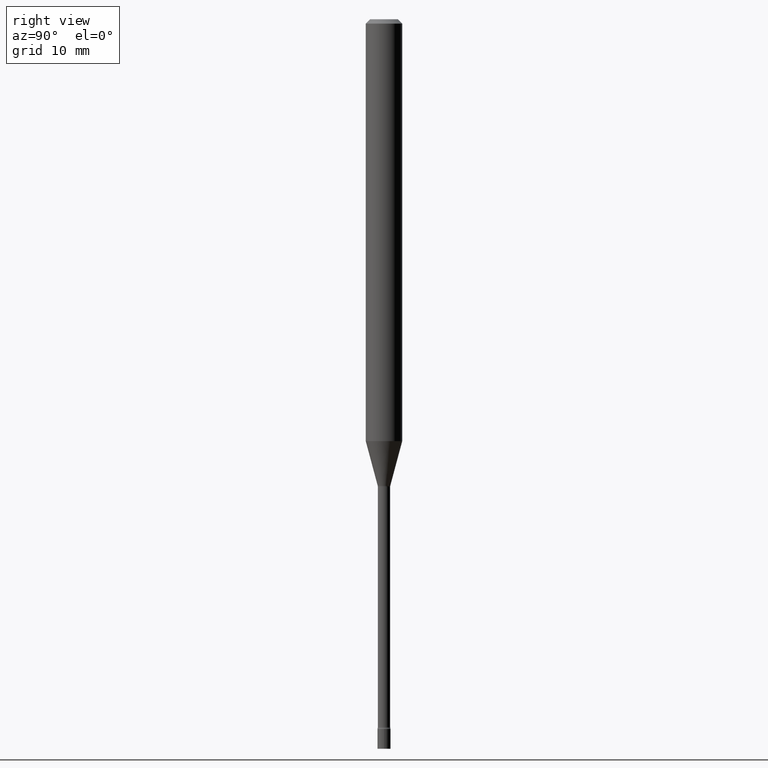
[diagram: clean part render]
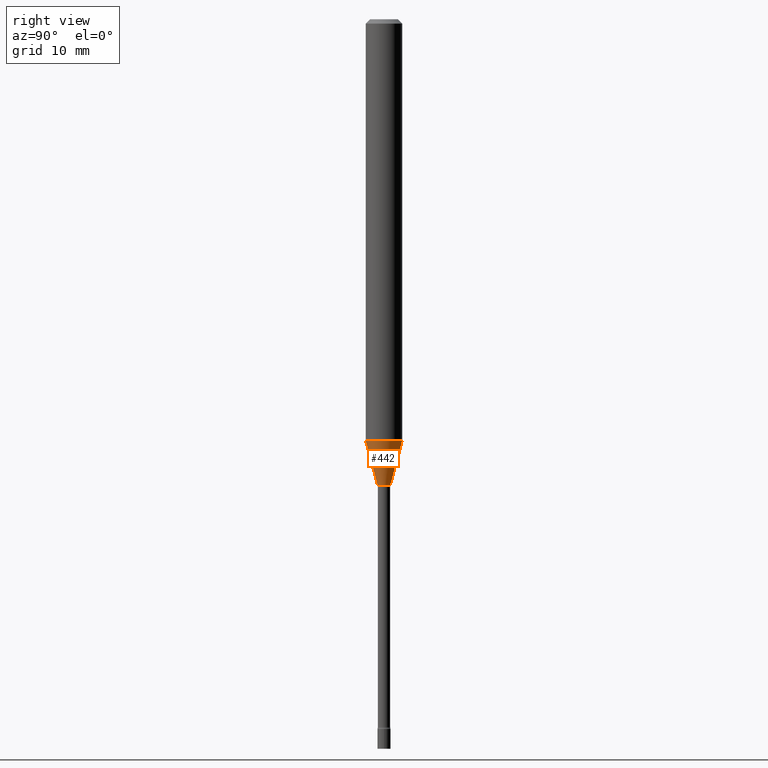
[diagram: same view with one face highlighted and labeled with its STEP entity id]
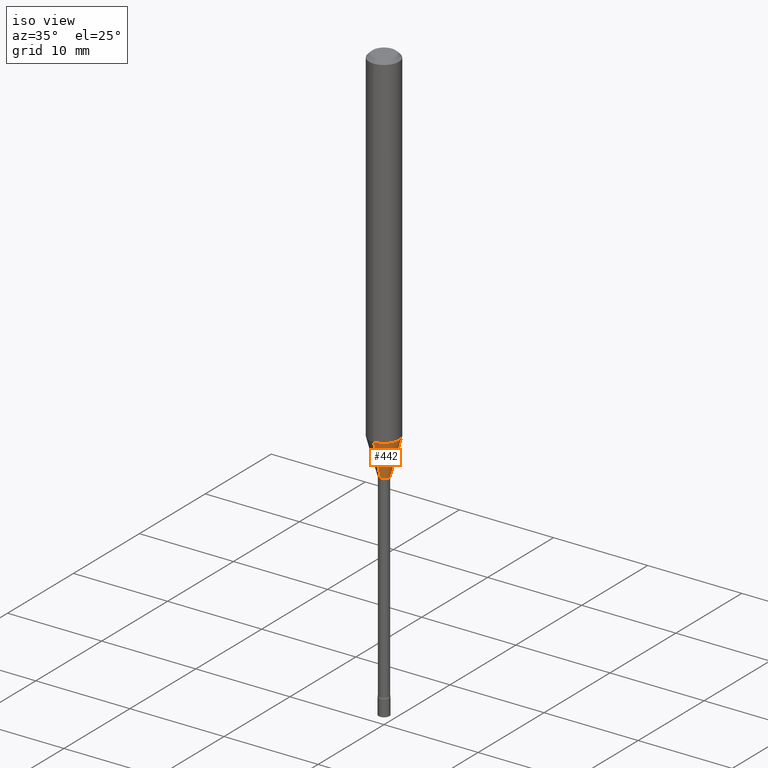
[diagram: same view with one face highlighted and labeled with its STEP entity id]
A machine part, right view. The second image highlights one B-rep face of the part: STEP entity #442.
A second angle (iso view) of the same face is appended — the face is thin or edge-on in the first view.
In plain terms, the highlighted conical surface has half-angle 15 deg.
Its self-contained STEP definition (entity closure, byte-faithful):
#10 = VERTEX_POINT ( 'NONE', #389 ) ;
#29 = DIRECTION ( 'NONE',  ( -6.982962677686265922E-15, -1.000000000000000000, 4.370956789862821150E-15 ) ) ;
#34 = CARTESIAN_POINT ( 'NONE',  ( 1.539114621043998178E-16, 0.02166111260565839816, -1.598092501787273134 ) ) ;
#55 = DIRECTION ( 'NONE',  ( -2.445430100594402543E-29, 3.491536767452062227E-15, 1.000000000000000000 ) ) ;
#61 = VERTEX_POINT ( 'NONE', #153 ) ;
#76 = CIRCLE ( 'NONE', #81, 0.02166111260566397703 ) ;
#77 = EDGE_CURVE ( 'NONE', #213, #10, #397, .T. ) ;
#81 = AXIS2_PLACEMENT_3D ( 'NONE', #467, #233, #509 ) ;
#99 = AXIS2_PLACEMENT_3D ( 'NONE', #507, #55, #107 ) ;
#103 = LINE ( 'NONE', #266, #430 ) ;
#107 = DIRECTION ( 'NONE',  ( -6.982962677686266711E-15, -1.000000000000000000, 0.000000000000000000 ) ) ;
#115 = DIRECTION ( 'NONE',  ( 1.839019923739599526E-15, 0.2588190451025248473, 0.9659258262890673130 ) ) ;
#118 = CARTESIAN_POINT ( 'NONE',  ( 3.535308652014583271E-29, -5.047643823391220949E-15, -1.445679699107027538 ) ) ;
#146 = CARTESIAN_POINT ( 'NONE',  ( -1.512587408824719933E-16, -0.02166111260566955590, -1.598092501787273134 ) ) ;
#153 = CARTESIAN_POINT ( 'NONE',  ( -4.364351673553564172E-16, -0.06250000000000506539, -1.445679699107027094 ) ) ;
#159 = AXIS2_PLACEMENT_3D ( 'NONE', #118, #445, #29 ) ;
#189 = CONICAL_SURFACE ( 'NONE', #99, 0.02166111260566397703, 0.2617993877991501295 ) ;
#192 = ORIENTED_EDGE ( 'NONE', *, *, #512, .T. ) ;
#203 = ORIENTED_EDGE ( 'NONE', *, *, #459, .F. ) ;
#213 = VERTEX_POINT ( 'NONE', #282 ) ;
#232 = ORIENTED_EDGE ( 'NONE', *, *, #77, .T. ) ;
#233 = DIRECTION ( 'NONE',  ( -2.445430100594402543E-29, 3.491536767452062227E-15, 1.000000000000000000 ) ) ;
#236 = EDGE_CURVE ( 'NONE', #61, #10, #386, .T. ) ;
#252 = VECTOR ( 'NONE', #115, 39.37007874015747433 ) ;
#266 = CARTESIAN_POINT ( 'NONE',  ( -1.512587408824719933E-16, -0.02166111260566955590, -1.598092501787273134 ) ) ;
#282 = CARTESIAN_POINT ( 'NONE',  ( 2.990003359772489910E-16, 0.02166111260565839816, -1.598092501787273134 ) ) ;
#310 = FACE_OUTER_BOUND ( 'NONE', #407, .T. ) ;
#346 = DIRECTION ( 'NONE',  ( -1.807323732225328562E-15, -0.2588190451025179639, 0.9659258262890689783 ) ) ;
#349 = ORIENTED_EDGE ( 'NONE', *, *, #236, .F. ) ;
#386 = CIRCLE ( 'NONE', #159, 0.06250000000000000000 ) ;
#389 = CARTESIAN_POINT ( 'NONE',  ( 4.440892098500978191E-16, 0.06249999999999494849, -1.445679699107027760 ) ) ;
#397 = LINE ( 'NONE', #34, #252 ) ;
#407 = EDGE_LOOP ( 'NONE', ( #192, #232, #349, #203 ) ) ;
#430 = VECTOR ( 'NONE', #346, 39.37007874015749564 ) ;
#442 = ADVANCED_FACE ( 'NONE', ( #310 ), #189, .T. ) ;
#445 = DIRECTION ( 'NONE',  ( -2.445430100594402543E-29, 3.491536767452062227E-15, 1.000000000000000000 ) ) ;
#459 = EDGE_CURVE ( 'NONE', #475, #61, #103, .T. ) ;
#467 = CARTESIAN_POINT ( 'NONE',  ( 3.908023507404811827E-29, -5.579798727779714596E-15, -1.598092501787273134 ) ) ;
#475 = VERTEX_POINT ( 'NONE', #146 ) ;
#507 = CARTESIAN_POINT ( 'NONE',  ( 3.908023507404811827E-29, -5.579798727779714596E-15, -1.598092501787273134 ) ) ;
#509 = DIRECTION ( 'NONE',  ( -6.982962677686266711E-15, -1.000000000000000000, 0.000000000000000000 ) ) ;
#512 = EDGE_CURVE ( 'NONE', #475, #213, #76, .T. ) ;